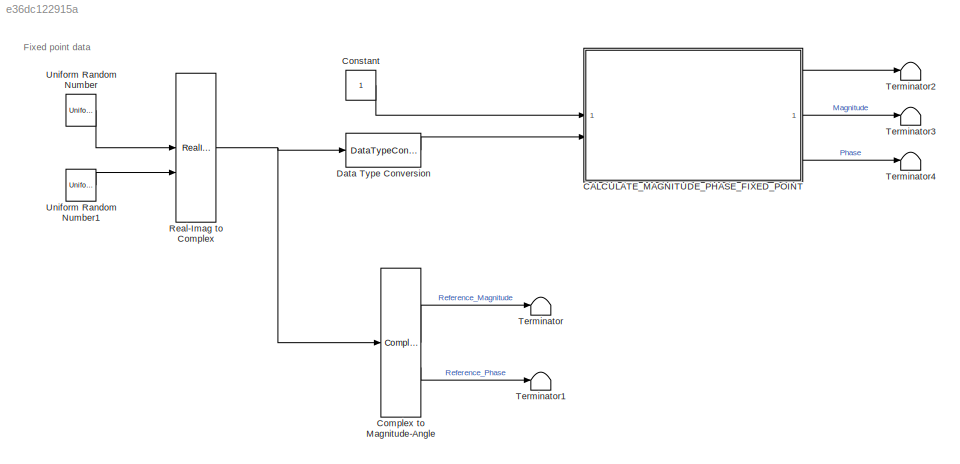
MODEL slx_e36dc122915a
KIND model
CONFIG AbsTol = auto
CONFIG EnableMultiTasking = off
CONFIG FixedStep = auto
CONFIG MaxStep = auto
CONFIG MinStep = auto
CONFIG RelTol = 1e-3
CONFIG SampleTimeConstraint = Unconstrained
CONFIG SolverName = VariableStepAuto
CONFIG StartTime = 0.0
CONFIG StopTime = 10.0
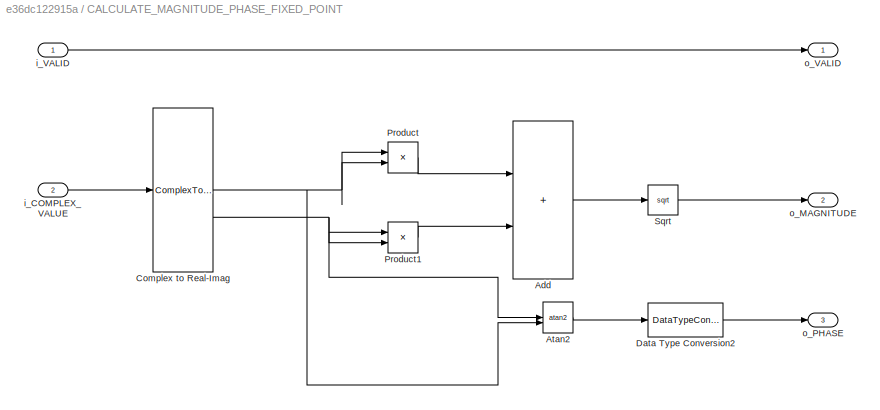
BLOCK [SubSystem] CALCULATE_MAGNITUDE_PHASE_FIXED_POINT
BLOCK [Sum] CALCULATE_MAGNITUDE_PHASE_FIXED_POINT/Add
  IconShape = rectangular
  OutDataTypeStr = fixdt(0,65,48)
BLOCK [Trigonometry] CALCULATE_MAGNITUDE_PHASE_FIXED_POINT/Atan2
  ApproximationMethod = CORDIC
  NumberOfIterations = 20
  Operator = atan2
BLOCK [ComplexToRealImag] CALCULATE_MAGNITUDE_PHASE_FIXED_POINT/Complex to Real-Imag
BLOCK [DataTypeConversion] CALCULATE_MAGNITUDE_PHASE_FIXED_POINT/Data Type Conversion2
  OutDataTypeStr = fixdt(0,16,13)
  RndMeth = Floor
  SaturateOnIntegerOverflow = off
BLOCK [Product] CALCULATE_MAGNITUDE_PHASE_FIXED_POINT/Product
BLOCK [Product] CALCULATE_MAGNITUDE_PHASE_FIXED_POINT/Product1
BLOCK [Sqrt] CALCULATE_MAGNITUDE_PHASE_FIXED_POINT/Sqrt
  OutDataTypeStr = fixdt(0,33,24 )
BLOCK [Inport] CALCULATE_MAGNITUDE_PHASE_FIXED_POINT/i_COMPLEX_VALUE
  Port = 2
BLOCK [Inport] CALCULATE_MAGNITUDE_PHASE_FIXED_POINT/i_VALID
BLOCK [Outport] CALCULATE_MAGNITUDE_PHASE_FIXED_POINT/o_MAGNITUDE
  Port = 2
BLOCK [Outport] CALCULATE_MAGNITUDE_PHASE_FIXED_POINT/o_PHASE
  Port = 3
BLOCK [Outport] CALCULATE_MAGNITUDE_PHASE_FIXED_POINT/o_VALID
BLOCK [ComplexToMagnitudeAngle] Complex to Magnitude-Angle
BLOCK [Constant] Constant
  OutDataTypeStr = boolean
  SampleTime = 1
BLOCK [DataTypeConversion] Data Type Conversion
  OutDataTypeStr = fixdt(0,32,24)
  RndMeth = Round
  SaturateOnIntegerOverflow = off
BLOCK [RealImagToComplex] Real-Imag to Complex
BLOCK [Terminator] Terminator
BLOCK [Terminator] Terminator1
BLOCK [Terminator] Terminator2
BLOCK [Terminator] Terminator3
BLOCK [Terminator] Terminator4
BLOCK [UniformRandomNumber] Uniform Random Number
  Maximum = 255.99999994039535522461
  Minimum = 0
  SampleTime = 1
  Seed = 8
BLOCK [UniformRandomNumber] Uniform Random Number1
  Maximum = 255.99999994039535522461
  Minimum = 0
  SampleTime = 1
  Seed = 9
ANNOTATION (root): Fixed point data
LINE CALCULATE_MAGNITUDE_PHASE_FIXED_POINT/Add:1 -> CALCULATE_MAGNITUDE_PHASE_FIXED_POINT/Sqrt:1
LINE CALCULATE_MAGNITUDE_PHASE_FIXED_POINT/Atan2:1 -> CALCULATE_MAGNITUDE_PHASE_FIXED_POINT/Data Type Conversion2:1
NET CALCULATE_MAGNITUDE_PHASE_FIXED_POINT/Complex to Real-Imag:1 -> CALCULATE_MAGNITUDE_PHASE_FIXED_POINT/Atan2:2, CALCULATE_MAGNITUDE_PHASE_FIXED_POINT/Product:1, CALCULATE_MAGNITUDE_PHASE_FIXED_POINT/Product:2
NET CALCULATE_MAGNITUDE_PHASE_FIXED_POINT/Complex to Real-Imag:2 -> CALCULATE_MAGNITUDE_PHASE_FIXED_POINT/Atan2:1, CALCULATE_MAGNITUDE_PHASE_FIXED_POINT/Product1:1, CALCULATE_MAGNITUDE_PHASE_FIXED_POINT/Product1:2
LINE CALCULATE_MAGNITUDE_PHASE_FIXED_POINT/Data Type Conversion2:1 -> CALCULATE_MAGNITUDE_PHASE_FIXED_POINT/o_PHASE:1
LINE CALCULATE_MAGNITUDE_PHASE_FIXED_POINT/Product1:1 -> CALCULATE_MAGNITUDE_PHASE_FIXED_POINT/Add:2
LINE CALCULATE_MAGNITUDE_PHASE_FIXED_POINT/Product:1 -> CALCULATE_MAGNITUDE_PHASE_FIXED_POINT/Add:1
LINE CALCULATE_MAGNITUDE_PHASE_FIXED_POINT/Sqrt:1 -> CALCULATE_MAGNITUDE_PHASE_FIXED_POINT/o_MAGNITUDE:1
LINE CALCULATE_MAGNITUDE_PHASE_FIXED_POINT/i_COMPLEX_VALUE:1 -> CALCULATE_MAGNITUDE_PHASE_FIXED_POINT/Complex to Real-Imag:1
LINE CALCULATE_MAGNITUDE_PHASE_FIXED_POINT/i_VALID:1 -> CALCULATE_MAGNITUDE_PHASE_FIXED_POINT/o_VALID:1
LINE CALCULATE_MAGNITUDE_PHASE_FIXED_POINT:1 -> Terminator2:1
LINE CALCULATE_MAGNITUDE_PHASE_FIXED_POINT:2 -> Terminator3:1
LINE CALCULATE_MAGNITUDE_PHASE_FIXED_POINT:3 -> Terminator4:1
LINE Complex to Magnitude-Angle:1 -> Terminator:1
LINE Complex to Magnitude-Angle:2 -> Terminator1:1
LINE Constant:1 -> CALCULATE_MAGNITUDE_PHASE_FIXED_POINT:1
LINE Data Type Conversion:1 -> CALCULATE_MAGNITUDE_PHASE_FIXED_POINT:2
NET Real-Imag to Complex:1 -> Complex to Magnitude-Angle:1, Data Type Conversion:1
LINE Uniform Random Number1:1 -> Real-Imag to Complex:2
LINE Uniform Random Number:1 -> Real-Imag to Complex:1
note: NET lines group one-source signal fan-out (src -> all destinations, sorted); 1:1 wires keep LINE
